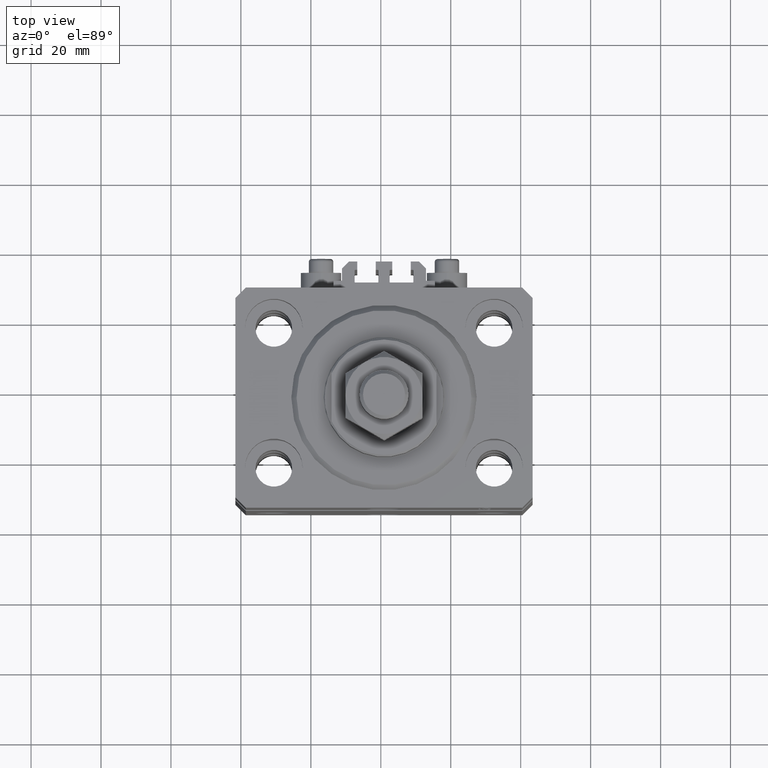
[diagram: clean part render]
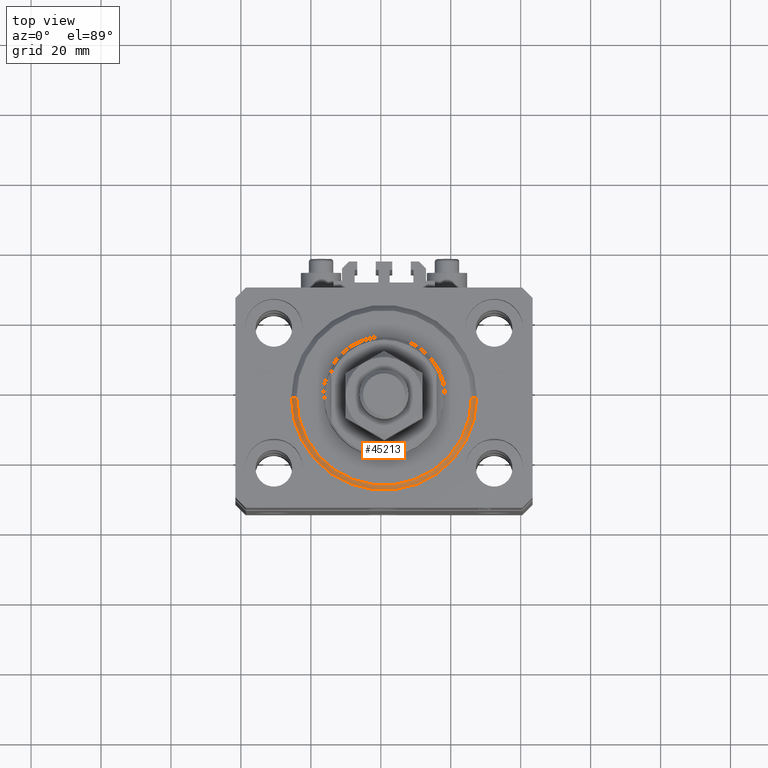
[diagram: same view with one face highlighted and labeled with its STEP entity id]
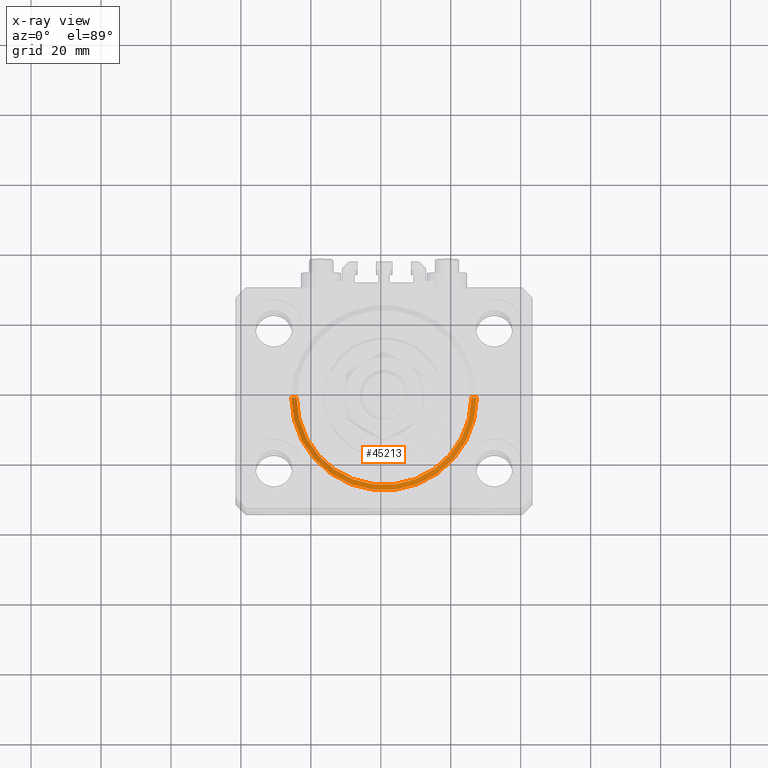
[diagram: x-ray of the same camera — body ghosted, the highlighted face saturated]
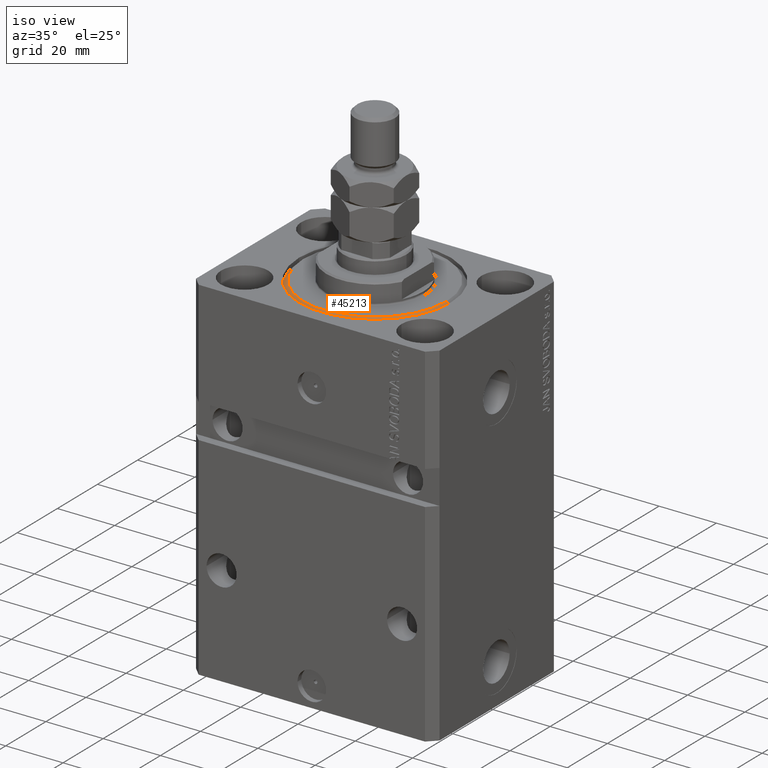
[diagram: same view with one face highlighted and labeled with its STEP entity id]
A machine part, top view. The second image highlights one B-rep face of the part: STEP entity #45213.
The next image is the same camera in x-ray: the body ghosted, the highlighted face saturated — about 0% of this face is hidden behind the body in this view.
A second angle (iso view) of the same face is appended — the face is thin or edge-on in the first view.
In plain terms, the highlighted conical surface has half-angle 45 deg.
Its self-contained STEP definition (entity closure, byte-faithful):
#406 = EDGE_CURVE ( 'NONE', #29881, #34697, #9864, .T. ) ;
#869 = VERTEX_POINT ( 'NONE', #23988 ) ;
#1631 = AXIS2_PLACEMENT_3D ( 'NONE', #20402, #24663, #32681 ) ;
#1789 = CARTESIAN_POINT ( 'NONE',  ( -26.50000000000000355, 0.000000000000000000, 1.500000000000018652 ) ) ;
#2018 = FACE_OUTER_BOUND ( 'NONE', #34395, .T. ) ;
#2987 = CARTESIAN_POINT ( 'NONE',  ( 26.50000000000000355, 3.245314017740486554E-15, 1.500000000000018652 ) ) ;
#9450 = DIRECTION ( 'NONE',  ( -0.7071067811865483499, 8.659560562354942719E-17, 0.7071067811865466846 ) ) ;
#9864 = CIRCLE ( 'NONE', #38090, 26.50000000000000355 ) ;
#12235 = LINE ( 'NONE', #19538, #43458 ) ;
#16785 = VECTOR ( 'NONE', #9450, 1000.000000000000000 ) ;
#19538 = CARTESIAN_POINT ( 'NONE',  ( 26.50000000000000355, 0.000000000000000000, 1.500000000000018652 ) ) ;
#20402 = CARTESIAN_POINT ( 'NONE',  ( 0.000000000000000000, 0.000000000000000000, 1.500000000000018652 ) ) ;
#21239 = ORIENTED_EDGE ( 'NONE', *, *, #48119, .F. ) ;
#22523 = CARTESIAN_POINT ( 'NONE',  ( 0.000000000000000000, 0.000000000000000000, 1.500000000000018652 ) ) ;
#23327 = DIRECTION ( 'NONE',  ( 0.7071067811865483499, 0.000000000000000000, 0.7071067811865466846 ) ) ;
#23988 = CARTESIAN_POINT ( 'NONE',  ( -24.99999999999998224, 3.153465507804433615E-15, 0.000000000000000000 ) ) ;
#24663 = DIRECTION ( 'NONE',  ( -0.000000000000000000, -0.000000000000000000, 1.000000000000000000 ) ) ;
#27028 = CIRCLE ( 'NONE', #42302, 24.99999999999998224 ) ;
#29557 = CARTESIAN_POINT ( 'NONE',  ( -26.50000000000000355, 3.245314017740486554E-15, 1.500000000000018652 ) ) ;
#29881 = VERTEX_POINT ( 'NONE', #1789 ) ;
#29931 = EDGE_CURVE ( 'NONE', #38632, #869, #27028, .T. ) ;
#31458 = ORIENTED_EDGE ( 'NONE', *, *, #43712, .T. ) ;
#32681 = DIRECTION ( 'NONE',  ( 1.000000000000000000, 0.000000000000000000, 0.000000000000000000 ) ) ;
#33062 = LINE ( 'NONE', #29557, #16785 ) ;
#33198 = DIRECTION ( 'NONE',  ( -0.000000000000000000, -0.000000000000000000, -1.000000000000000000 ) ) ;
#33799 = DIRECTION ( 'NONE',  ( -0.000000000000000000, -0.000000000000000000, 1.000000000000000000 ) ) ;
#34376 = CARTESIAN_POINT ( 'NONE',  ( 24.99999999999998224, 0.000000000000000000, 0.000000000000000000 ) ) ;
#34395 = EDGE_LOOP ( 'NONE', ( #21239, #49621, #31458, #43795 ) ) ;
#34697 = VERTEX_POINT ( 'NONE', #2987 ) ;
#38090 = AXIS2_PLACEMENT_3D ( 'NONE', #22523, #33799, #49154 ) ;
#38632 = VERTEX_POINT ( 'NONE', #34376 ) ;
#42302 = AXIS2_PLACEMENT_3D ( 'NONE', #45796, #33198, #45043 ) ;
#43458 = VECTOR ( 'NONE', #23327, 1000.000000000000000 ) ;
#43712 = EDGE_CURVE ( 'NONE', #38632, #34697, #12235, .T. ) ;
#43795 = ORIENTED_EDGE ( 'NONE', *, *, #406, .F. ) ;
#45017 = CONICAL_SURFACE ( 'NONE', #1631, 26.50000000000000355, 0.7853981633974495002 ) ;
#45043 = DIRECTION ( 'NONE',  ( 1.000000000000000000, 0.000000000000000000, 0.000000000000000000 ) ) ;
#45213 = ADVANCED_FACE ( 'NONE', ( #2018 ), #45017, .T. ) ;
#45796 = CARTESIAN_POINT ( 'NONE',  ( 0.000000000000000000, 0.000000000000000000, 0.000000000000000000 ) ) ;
#48119 = EDGE_CURVE ( 'NONE', #869, #29881, #33062, .T. ) ;
#49154 = DIRECTION ( 'NONE',  ( 1.000000000000000000, 0.000000000000000000, 0.000000000000000000 ) ) ;
#49621 = ORIENTED_EDGE ( 'NONE', *, *, #29931, .F. ) ;